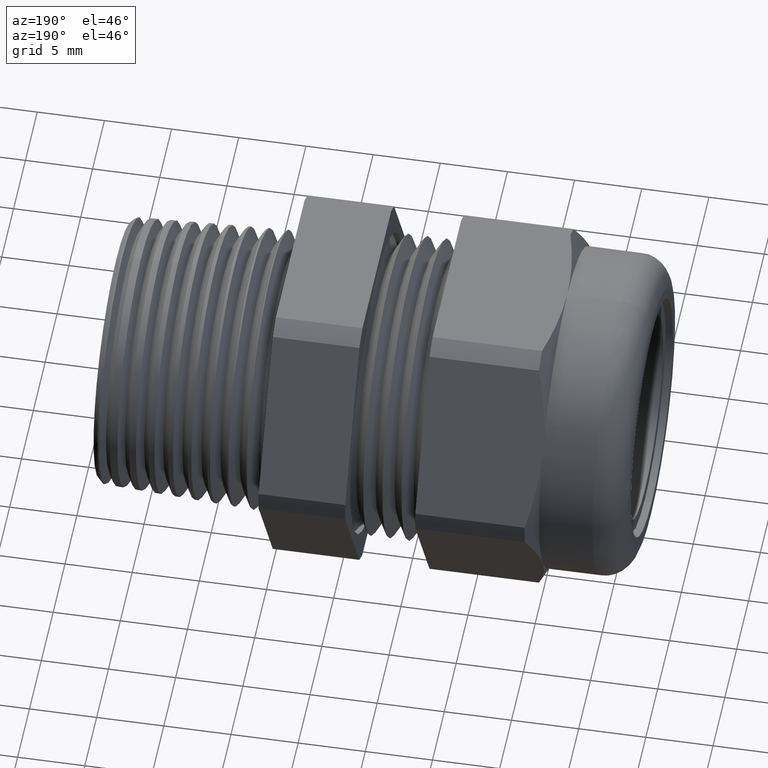
[diagram: clean part render]
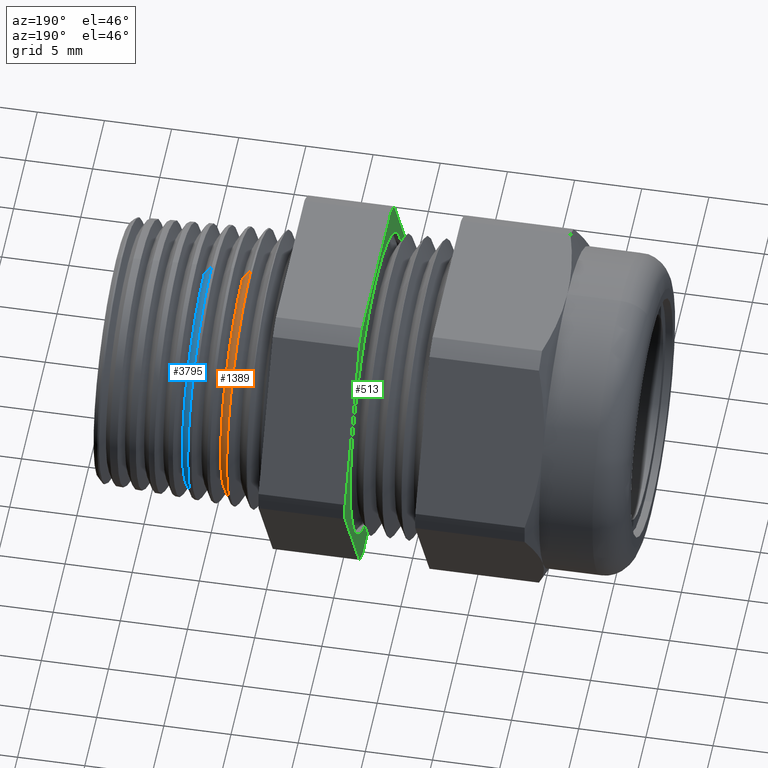
[diagram: same view with three faces highlighted in distinct colors, each labeled with its STEP entity id]
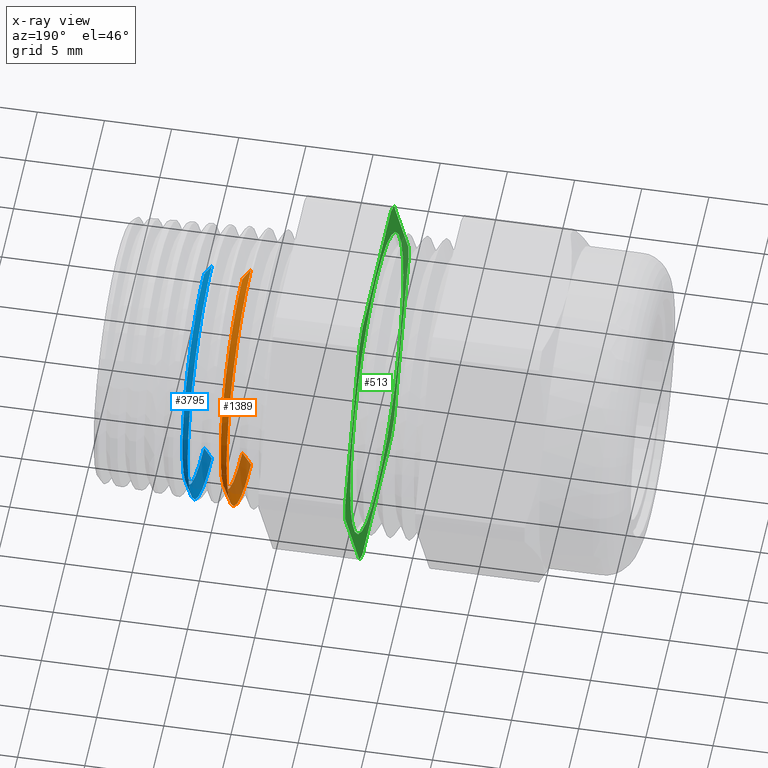
[diagram: x-ray of the same camera — body ghosted, the three highlighted faces saturated]
A machine part, auxiliary view with three faces highlighted in distinct colors.
The next image is the same camera in x-ray (body ghosted, the three faces saturated) — at least one of them is partly hidden behind the body in this view.
Their STEP definitions:

[orange] entity #1389 — the highlighted conical surface has half-angle 60 deg.
#1356 = VERTEX_POINT ( 'NONE', #2244 ) ;
#1360 = VERTEX_POINT ( 'NONE', #2241 ) ;
#1361 = EDGE_CURVE ( 'NONE', #1360, #1356, #2240, .T. ) ;
#1368 = VERTEX_POINT ( 'NONE', #2280 ) ;
#1369 = EDGE_CURVE ( 'NONE', #1375, #1368, #2279, .T. ) ;
#1370 = ORIENTED_EDGE ( 'NONE', *, *, #1369, .T. ) ;
#1372 = EDGE_CURVE ( 'NONE', #1356, #1375, #2273, .T. ) ;
#1373 = ORIENTED_EDGE ( 'NONE', *, *, #1372, .T. ) ;
#1375 = VERTEX_POINT ( 'NONE', #2264 ) ;
#1379 = ORIENTED_EDGE ( 'NONE', *, *, #1361, .T. ) ;
#1389 = ADVANCED_FACE ( 'NONE', ( #2304 ), #2302, .T. ) ;
#1394 = EDGE_LOOP ( 'NONE', ( #1379, #1373, #1370, #1404 ) ) ;
#1403 = EDGE_CURVE ( 'NONE', #1360, #1368, #2368, .T. ) ;
#1404 = ORIENTED_EDGE ( 'NONE', *, *, #1403, .F. ) ;
#2236 = DIRECTION ( 'NONE',  ( 0.0000000000000000000, 0.0000000000000000000, 1.000000000000000000 ) ) ;
#2237 = DIRECTION ( 'NONE',  ( -1.000000000000000000, 0.0000000000000000000, 0.0000000000000000000 ) ) ;
#2238 = CARTESIAN_POINT ( 'NONE',  ( 0.1402379998258639900, 0.0000000000000000000, 0.0000000000000000000 ) ) ;
#2239 = AXIS2_PLACEMENT_3D ( 'NONE', #2238, #2237, #2236 ) ;
#2240 = CIRCLE ( 'NONE', #2239, 0.3610903495974812600 ) ;
#2241 = CARTESIAN_POINT ( 'NONE',  ( 0.1402379998258639900, 0.0000000000000000000, 0.3610903495974812600 ) ) ;
#2244 = CARTESIAN_POINT ( 'NONE',  ( 0.1402379998258639900, 4.690849565876275400E-017, -0.3610903495974812600 ) ) ;
#2264 = CARTESIAN_POINT ( 'NONE',  ( 0.1148962656718722400, 4.961004129706623900E-017, -0.4049835207040991000 ) ) ;
#2270 = DIRECTION ( 'NONE',  ( -0.4999999999999945000, 1.060575238724910700E-016, -0.8660254037844418200 ) ) ;
#2271 = VECTOR ( 'NONE', #2270, 39.37007874015748100 ) ;
#2272 = CARTESIAN_POINT ( 'NONE',  ( 0.1119999999999997400, 5.021051876504148100E-017, -0.4099999999999999800 ) ) ;
#2273 = LINE ( 'NONE', #2272, #2271 ) ;
#2275 = DIRECTION ( 'NONE',  ( 0.0000000000000000000, 0.0000000000000000000, 1.000000000000000000 ) ) ;
#2276 = DIRECTION ( 'NONE',  ( 1.000000000000000000, 0.0000000000000000000, 0.0000000000000000000 ) ) ;
#2277 = CARTESIAN_POINT ( 'NONE',  ( 0.1148962656718722400, 0.0000000000000000000, 0.0000000000000000000 ) ) ;
#2278 = AXIS2_PLACEMENT_3D ( 'NONE', #2277, #2276, #2275 ) ;
#2279 = CIRCLE ( 'NONE', #2278, 0.4049835207040991000 ) ;
#2280 = CARTESIAN_POINT ( 'NONE',  ( 0.1148962656718722400, 0.0000000000000000000, 0.4049835207040991000 ) ) ;
#2299 = DIRECTION ( 'NONE',  ( 0.0000000000000000000, 0.0000000000000000000, 1.000000000000000000 ) ) ;
#2300 = DIRECTION ( 'NONE',  ( -1.000000000000000000, 0.0000000000000000000, 0.0000000000000000000 ) ) ;
#2301 = AXIS2_PLACEMENT_3D ( 'NONE', #2303, #2300, #2299 ) ;
#2302 = CONICAL_SURFACE ( 'NONE', #2301, 0.4099999999999999800, 1.047197551196604100 ) ;
#2303 = CARTESIAN_POINT ( 'NONE',  ( 0.1119999999999997400, 0.0000000000000000000, 0.0000000000000000000 ) ) ;
#2304 = FACE_OUTER_BOUND ( 'NONE', #1394, .T. ) ;
#2365 = DIRECTION ( 'NONE',  ( -0.4999999999999945000, 0.0000000000000000000, 0.8660254037844418200 ) ) ;
#2366 = VECTOR ( 'NONE', #2365, 39.37007874015748100 ) ;
#2367 = CARTESIAN_POINT ( 'NONE',  ( 0.1119999999999997400, 0.0000000000000000000, 0.4099999999999999800 ) ) ;
#2368 = LINE ( 'NONE', #2367, #2366 ) ;

[blue] entity #3795 — the highlighted conical surface has half-angle 60 deg.
#43 = ORIENTED_EDGE ( 'NONE', *, *, #3713, .T. ) ;
#44 = EDGE_LOOP ( 'NONE', ( #43, #3747, #3741, #46 ) ) ;
#46 = ORIENTED_EDGE ( 'NONE', *, *, #1341, .F. ) ;
#1341 = EDGE_CURVE ( 'NONE', #3715, #1759, #2221, .T. ) ;
#1759 = VERTEX_POINT ( 'NONE', #2887 ) ;
#2218 = DIRECTION ( 'NONE',  ( -0.4999999999999945000, 0.0000000000000000000, 0.8660254037844418200 ) ) ;
#2219 = VECTOR ( 'NONE', #2218, 39.37007874015748100 ) ;
#2220 = CARTESIAN_POINT ( 'NONE',  ( 0.2239999999999997500, 0.0000000000000000000, 0.4099999999999999800 ) ) ;
#2221 = LINE ( 'NONE', #2220, #2219 ) ;
#2887 = CARTESIAN_POINT ( 'NONE',  ( 0.2297925313437447800, 0.0000000000000000000, 0.3999670414081982200 ) ) ;
#3300 = CARTESIAN_POINT ( 'NONE',  ( 0.2522379998258640300, 0.0000000000000000000, 0.3610903495974812600 ) ) ;
#3301 = DIRECTION ( 'NONE',  ( 0.0000000000000000000, 0.0000000000000000000, 1.000000000000000000 ) ) ;
#3302 = DIRECTION ( 'NONE',  ( -1.000000000000000000, 0.0000000000000000000, 0.0000000000000000000 ) ) ;
#3303 = CARTESIAN_POINT ( 'NONE',  ( 0.2522379998258640300, 0.0000000000000000000, 0.0000000000000000000 ) ) ;
#3304 = AXIS2_PLACEMENT_3D ( 'NONE', #3303, #3302, #3301 ) ;
#3305 = CIRCLE ( 'NONE', #3304, 0.3610903495974812600 ) ;
#3329 = CARTESIAN_POINT ( 'NONE',  ( 0.2297925313437447800, 4.901080510623984000E-017, -0.3999670414081982200 ) ) ;
#3330 = DIRECTION ( 'NONE',  ( 0.0000000000000000000, 0.0000000000000000000, 1.000000000000000000 ) ) ;
#3331 = DIRECTION ( 'NONE',  ( 1.000000000000000000, 0.0000000000000000000, 0.0000000000000000000 ) ) ;
#3332 = CARTESIAN_POINT ( 'NONE',  ( 0.2297925313437447800, 0.0000000000000000000, 0.0000000000000000000 ) ) ;
#3333 = AXIS2_PLACEMENT_3D ( 'NONE', #3332, #3331, #3330 ) ;
#3334 = CIRCLE ( 'NONE', #3333, 0.3999670414081982200 ) ;
#3351 = CARTESIAN_POINT ( 'NONE',  ( 0.2522379998258640300, 4.660132489312705100E-017, -0.3610903495974812600 ) ) ;
#3372 = DIRECTION ( 'NONE',  ( -0.4999999999999945000, 1.060575238724910700E-016, -0.8660254037844418200 ) ) ;
#3373 = VECTOR ( 'NONE', #3372, 39.37007874015748100 ) ;
#3374 = CARTESIAN_POINT ( 'NONE',  ( 0.2239999999999997500, 5.021051876504148100E-017, -0.4099999999999999800 ) ) ;
#3375 = LINE ( 'NONE', #3374, #3373 ) ;
#3461 = DIRECTION ( 'NONE',  ( 0.0000000000000000000, 0.0000000000000000000, 1.000000000000000000 ) ) ;
#3462 = DIRECTION ( 'NONE',  ( -1.000000000000000000, 0.0000000000000000000, 0.0000000000000000000 ) ) ;
#3463 = CARTESIAN_POINT ( 'NONE',  ( 0.2239999999999997500, 0.0000000000000000000, 0.0000000000000000000 ) ) ;
#3464 = AXIS2_PLACEMENT_3D ( 'NONE', #3463, #3462, #3461 ) ;
#3465 = CONICAL_SURFACE ( 'NONE', #3464, 0.4099999999999999800, 1.047197551196604100 ) ;
#3467 = FACE_OUTER_BOUND ( 'NONE', #44, .T. ) ;
#3713 = EDGE_CURVE ( 'NONE', #3715, #3721, #3305, .T. ) ;
#3715 = VERTEX_POINT ( 'NONE', #3300 ) ;
#3721 = VERTEX_POINT ( 'NONE', #3351 ) ;
#3737 = EDGE_CURVE ( 'NONE', #3738, #1759, #3334, .T. ) ;
#3738 = VERTEX_POINT ( 'NONE', #3329 ) ;
#3741 = ORIENTED_EDGE ( 'NONE', *, *, #3737, .T. ) ;
#3746 = EDGE_CURVE ( 'NONE', #3721, #3738, #3375, .T. ) ;
#3747 = ORIENTED_EDGE ( 'NONE', *, *, #3746, .T. ) ;
#3795 = ADVANCED_FACE ( 'NONE', ( #3467 ), #3465, .T. ) ;

[green] entity #513 — the highlighted planar face has unit normal (1, 0, 0).
#2 = CARTESIAN_POINT ( 'NONE',  ( -0.2537313432835821000, -0.2970569397786860200, -0.4254822875623872600 ) ) ;
#3 = LINE ( 'NONE', #2, #8 ) ;
#4 = DIRECTION ( 'NONE',  ( 0.0000000000000000000, 0.5000000000000001100, -0.8660254037844386000 ) ) ;
#8 = VECTOR ( 'NONE', #4, 39.37007874015748100 ) ;
#218 = ORIENTED_EDGE ( 'NONE', *, *, #415, .F. ) ;
#219 = VERTEX_POINT ( 'NONE', #923 ) ;
#220 = VERTEX_POINT ( 'NONE', #922 ) ;
#225 = EDGE_CURVE ( 'NONE', #534, #220, #982, .T. ) ;
#235 = VERTEX_POINT ( 'NONE', #954 ) ;
#238 = ORIENTED_EDGE ( 'NONE', *, *, #3633, .F. ) ;
#239 = VERTEX_POINT ( 'NONE', #955 ) ;
#415 = EDGE_CURVE ( 'NONE', #219, #220, #1846, .T. ) ;
#513 = ADVANCED_FACE ( 'NONE', ( #2052, #2051 ), #2050, .F. ) ;
#514 = EDGE_LOOP ( 'NONE', ( #515, #517 ) ) ;
#515 = ORIENTED_EDGE ( 'NONE', *, *, #516, .T. ) ;
#516 = EDGE_CURVE ( 'NONE', #1469, #1482, #2045, .T. ) ;
#517 = ORIENTED_EDGE ( 'NONE', *, *, #1474, .T. ) ;
#518 = EDGE_LOOP ( 'NONE', ( #519, #523, #526, #529, #532, #535, #218, #3634, #238, #3602, #3592, #3609 ) ) ;
#519 = ORIENTED_EDGE ( 'NONE', *, *, #520, .F. ) ;
#520 = EDGE_CURVE ( 'NONE', #521, #522, #3, .T. ) ;
#521 = VERTEX_POINT ( 'NONE', #2106 ) ;
#522 = VERTEX_POINT ( 'NONE', #2105 ) ;
#523 = ORIENTED_EDGE ( 'NONE', *, *, #524, .T. ) ;
#524 = EDGE_CURVE ( 'NONE', #521, #525, #2104, .T. ) ;
#525 = VERTEX_POINT ( 'NONE', #2099 ) ;
#526 = ORIENTED_EDGE ( 'NONE', *, *, #527, .F. ) ;
#527 = EDGE_CURVE ( 'NONE', #528, #525, #2098, .T. ) ;
#528 = VERTEX_POINT ( 'NONE', #2094 ) ;
#529 = ORIENTED_EDGE ( 'NONE', *, *, #530, .T. ) ;
#530 = EDGE_CURVE ( 'NONE', #528, #531, #2093, .T. ) ;
#531 = VERTEX_POINT ( 'NONE', #2088 ) ;
#532 = ORIENTED_EDGE ( 'NONE', *, *, #533, .F. ) ;
#533 = EDGE_CURVE ( 'NONE', #534, #531, #2087, .T. ) ;
#534 = VERTEX_POINT ( 'NONE', #2083 ) ;
#535 = ORIENTED_EDGE ( 'NONE', *, *, #225, .T. ) ;
#922 = CARTESIAN_POINT ( 'NONE',  ( -0.2537313432835821600, 0.2885024497772521500, 0.4402990988777105700 ) ) ;
#923 = CARTESIAN_POINT ( 'NONE',  ( -0.2537313432835821600, 0.5255614297801198800, 0.02970090112228932300 ) ) ;
#954 = CARTESIAN_POINT ( 'NONE',  ( -0.2537313432835821600, 0.2885024497772519800, -0.4402990988777107400 ) ) ;
#955 = CARTESIAN_POINT ( 'NONE',  ( -0.2537313432835821600, 0.5255614297801198800, -0.02970090112228930500 ) ) ;
#978 = DIRECTION ( 'NONE',  ( 0.0000000000000000000, 0.0000000000000000000, 1.000000000000000000 ) ) ;
#979 = DIRECTION ( 'NONE',  ( -1.000000000000000000, 0.0000000000000000000, 0.0000000000000000000 ) ) ;
#980 = CARTESIAN_POINT ( 'NONE',  ( -0.2537313432835821000, 0.0000000000000000000, 0.0000000000000000000 ) ) ;
#981 = AXIS2_PLACEMENT_3D ( 'NONE', #980, #979, #978 ) ;
#982 = CIRCLE ( 'NONE', #981, 0.5263999999999999800 ) ;
#1469 = VERTEX_POINT ( 'NONE', #2493 ) ;
#1474 = EDGE_CURVE ( 'NONE', #1482, #1469, #2492, .T. ) ;
#1482 = VERTEX_POINT ( 'NONE', #2470 ) ;
#1843 = DIRECTION ( 'NONE',  ( 0.0000000000000000000, -0.5000000000000001100, 0.8660254037844386000 ) ) ;
#1844 = VECTOR ( 'NONE', #1843, 39.37007874015748100 ) ;
#1845 = CARTESIAN_POINT ( 'NONE',  ( -0.2537313432835821000, 0.5170069397786860600, 0.04451771243761267600 ) ) ;
#1846 = LINE ( 'NONE', #1845, #1844 ) ;
#2041 = DIRECTION ( 'NONE',  ( 0.0000000000000000000, 0.0000000000000000000, -1.000000000000000000 ) ) ;
#2042 = DIRECTION ( 'NONE',  ( 1.000000000000000000, 0.0000000000000000000, 0.0000000000000000000 ) ) ;
#2043 = CARTESIAN_POINT ( 'NONE',  ( -0.2537313432835821600, 0.0000000000000000000, 0.0000000000000000000 ) ) ;
#2044 = AXIS2_PLACEMENT_3D ( 'NONE', #2043, #2042, #2041 ) ;
#2045 = CIRCLE ( 'NONE', #2044, 0.4399000000000000100 ) ;
#2046 = DIRECTION ( 'NONE',  ( 0.0000000000000000000, 0.0000000000000000000, -1.000000000000000000 ) ) ;
#2047 = DIRECTION ( 'NONE',  ( 1.000000000000000000, 0.0000000000000000000, 0.0000000000000000000 ) ) ;
#2048 = CARTESIAN_POINT ( 'NONE',  ( -0.2537313432835821000, 0.4399000000000000100, 0.0000000000000000000 ) ) ;
#2049 = AXIS2_PLACEMENT_3D ( 'NONE', #2048, #2047, #2046 ) ;
#2050 = PLANE ( 'NONE',  #2049 ) ;
#2051 = FACE_OUTER_BOUND ( 'NONE', #518, .T. ) ;
#2052 = FACE_BOUND ( 'NONE', #514, .T. ) ;
#2083 = CARTESIAN_POINT ( 'NONE',  ( -0.2537313432835821600, 0.2370589800028674000, 0.4700000000000000300 ) ) ;
#2084 = DIRECTION ( 'NONE',  ( 0.0000000000000000000, -1.000000000000000000, 0.0000000000000000000 ) ) ;
#2085 = VECTOR ( 'NONE', #2084, 39.37007874015748100 ) ;
#2086 = CARTESIAN_POINT ( 'NONE',  ( -0.2537313432835821000, 0.4399000000000000100, 0.4700000000000000300 ) ) ;
#2087 = LINE ( 'NONE', #2086, #2085 ) ;
#2088 = CARTESIAN_POINT ( 'NONE',  ( -0.2537313432835821600, -0.2370589800028674900, 0.4700000000000000300 ) ) ;
#2089 = DIRECTION ( 'NONE',  ( 0.0000000000000000000, 0.0000000000000000000, 1.000000000000000000 ) ) ;
#2090 = DIRECTION ( 'NONE',  ( -1.000000000000000000, 0.0000000000000000000, 0.0000000000000000000 ) ) ;
#2091 = CARTESIAN_POINT ( 'NONE',  ( -0.2537313432835821000, 0.0000000000000000000, 0.0000000000000000000 ) ) ;
#2092 = AXIS2_PLACEMENT_3D ( 'NONE', #2091, #2090, #2089 ) ;
#2093 = CIRCLE ( 'NONE', #2092, 0.5263999999999999800 ) ;
#2094 = CARTESIAN_POINT ( 'NONE',  ( -0.2537313432835821600, -0.2885024497772523100, 0.4402990988777104600 ) ) ;
#2095 = DIRECTION ( 'NONE',  ( 0.0000000000000000000, -0.5000000000000001100, -0.8660254037844386000 ) ) ;
#2096 = VECTOR ( 'NONE', #2095, 39.37007874015748100 ) ;
#2097 = CARTESIAN_POINT ( 'NONE',  ( -0.2537313432835821000, -0.2970569397786860200, 0.4254822875623872600 ) ) ;
#2098 = LINE ( 'NONE', #2097, #2096 ) ;
#2099 = CARTESIAN_POINT ( 'NONE',  ( -0.2537313432835821600, -0.5255614297801198800, 0.02970090112228941000 ) ) ;
#2100 = DIRECTION ( 'NONE',  ( 0.0000000000000000000, 0.0000000000000000000, 1.000000000000000000 ) ) ;
#2101 = DIRECTION ( 'NONE',  ( -1.000000000000000000, 0.0000000000000000000, 0.0000000000000000000 ) ) ;
#2102 = CARTESIAN_POINT ( 'NONE',  ( -0.2537313432835821000, 0.0000000000000000000, 0.0000000000000000000 ) ) ;
#2103 = AXIS2_PLACEMENT_3D ( 'NONE', #2102, #2101, #2100 ) ;
#2104 = CIRCLE ( 'NONE', #2103, 0.5263999999999999800 ) ;
#2105 = CARTESIAN_POINT ( 'NONE',  ( -0.2537313432835821600, -0.2885024497772519800, -0.4402990988777107400 ) ) ;
#2106 = CARTESIAN_POINT ( 'NONE',  ( -0.2537313432835821600, -0.5255614297801198800, -0.02970090112228920500 ) ) ;
#2470 = CARTESIAN_POINT ( 'NONE',  ( -0.2537313432835821600, 5.387221269449206900E-017, 0.4399000000000000100 ) ) ;
#2488 = DIRECTION ( 'NONE',  ( 0.0000000000000000000, 0.0000000000000000000, -1.000000000000000000 ) ) ;
#2489 = DIRECTION ( 'NONE',  ( 1.000000000000000000, 0.0000000000000000000, 0.0000000000000000000 ) ) ;
#2490 = CARTESIAN_POINT ( 'NONE',  ( -0.2537313432835821600, 0.0000000000000000000, 0.0000000000000000000 ) ) ;
#2491 = AXIS2_PLACEMENT_3D ( 'NONE', #2490, #2489, #2488 ) ;
#2492 = CIRCLE ( 'NONE', #2491, 0.4399000000000000100 ) ;
#2493 = CARTESIAN_POINT ( 'NONE',  ( -0.2537313432835821600, 0.0000000000000000000, -0.4399000000000000100 ) ) ;
#3073 = CARTESIAN_POINT ( 'NONE',  ( -0.2537313432835821600, 0.2370589800028677400, -0.4699999999999999200 ) ) ;
#3103 = CARTESIAN_POINT ( 'NONE',  ( -0.2537313432835821600, -0.2370589800028678500, -0.4699999999999997500 ) ) ;
#3104 = DIRECTION ( 'NONE',  ( 0.0000000000000000000, 1.000000000000000000, 0.0000000000000000000 ) ) ;
#3105 = VECTOR ( 'NONE', #3104, 39.37007874015748100 ) ;
#3106 = CARTESIAN_POINT ( 'NONE',  ( -0.2537313432835821000, 0.4399000000000000100, -0.4699999999999999200 ) ) ;
#3107 = LINE ( 'NONE', #3106, #3105 ) ;
#3108 = DIRECTION ( 'NONE',  ( 0.0000000000000000000, 0.0000000000000000000, 1.000000000000000000 ) ) ;
#3109 = DIRECTION ( 'NONE',  ( -1.000000000000000000, 0.0000000000000000000, 0.0000000000000000000 ) ) ;
#3110 = CARTESIAN_POINT ( 'NONE',  ( -0.2537313432835821000, 0.0000000000000000000, 0.0000000000000000000 ) ) ;
#3111 = AXIS2_PLACEMENT_3D ( 'NONE', #3110, #3109, #3108 ) ;
#3112 = CIRCLE ( 'NONE', #3111, 0.5263999999999999800 ) ;
#3125 = DIRECTION ( 'NONE',  ( 0.0000000000000000000, 0.0000000000000000000, 1.000000000000000000 ) ) ;
#3126 = DIRECTION ( 'NONE',  ( -1.000000000000000000, 0.0000000000000000000, 0.0000000000000000000 ) ) ;
#3127 = CARTESIAN_POINT ( 'NONE',  ( -0.2537313432835821000, 0.0000000000000000000, 0.0000000000000000000 ) ) ;
#3128 = AXIS2_PLACEMENT_3D ( 'NONE', #3127, #3126, #3125 ) ;
#3129 = CIRCLE ( 'NONE', #3128, 0.5263999999999999800 ) ;
#3137 = DIRECTION ( 'NONE',  ( 0.0000000000000000000, 0.5000000000000001100, 0.8660254037844384900 ) ) ;
#3138 = VECTOR ( 'NONE', #3137, 39.37007874015748900 ) ;
#3139 = CARTESIAN_POINT ( 'NONE',  ( -0.2537313432835821000, 0.5170069397786860600, -0.04451771243761268300 ) ) ;
#3140 = LINE ( 'NONE', #3139, #3138 ) ;
#3146 = DIRECTION ( 'NONE',  ( 0.0000000000000000000, 0.0000000000000000000, 1.000000000000000000 ) ) ;
#3147 = DIRECTION ( 'NONE',  ( -1.000000000000000000, 0.0000000000000000000, 0.0000000000000000000 ) ) ;
#3148 = CARTESIAN_POINT ( 'NONE',  ( -0.2537313432835821000, 0.0000000000000000000, 0.0000000000000000000 ) ) ;
#3149 = AXIS2_PLACEMENT_3D ( 'NONE', #3148, #3147, #3146 ) ;
#3154 = CIRCLE ( 'NONE', #3149, 0.5263999999999999800 ) ;
#3592 = ORIENTED_EDGE ( 'NONE', *, *, #3615, .F. ) ;
#3594 = VERTEX_POINT ( 'NONE', #3073 ) ;
#3602 = ORIENTED_EDGE ( 'NONE', *, *, #3606, .T. ) ;
#3606 = EDGE_CURVE ( 'NONE', #235, #3594, #3129, .T. ) ;
#3609 = ORIENTED_EDGE ( 'NONE', *, *, #3614, .T. ) ;
#3614 = EDGE_CURVE ( 'NONE', #3616, #522, #3112, .T. ) ;
#3615 = EDGE_CURVE ( 'NONE', #3616, #3594, #3107, .T. ) ;
#3616 = VERTEX_POINT ( 'NONE', #3103 ) ;
#3626 = EDGE_CURVE ( 'NONE', #219, #239, #3154, .T. ) ;
#3633 = EDGE_CURVE ( 'NONE', #235, #239, #3140, .T. ) ;
#3634 = ORIENTED_EDGE ( 'NONE', *, *, #3626, .T. ) ;